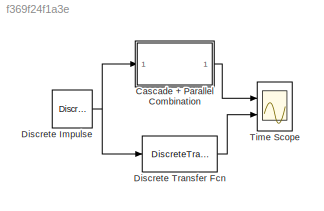
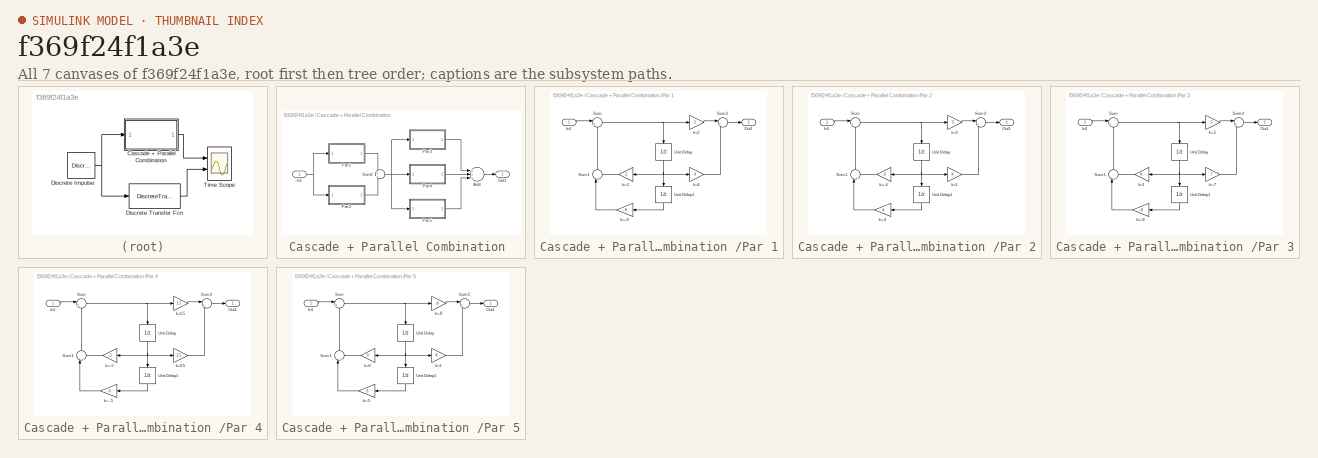
[diagram: thumbnail index - all 7 canvases of the model, root first then tree order]
MODEL slx_f369f24f1a3e
KIND model
CONFIG InitFcn =  b=[14 37.39 27.24 6.26 12.481 11.6605 ...\n -5.7215 -3.8865 .5425];\na=[1 .9 .5 .08 .14 .353 -.244 -.289 -.182 -.01 .072];
BLOCK [SubSystem] Cascade + Parallel Combination 
  Ports = [1, 1]
  RequestExecContextInheritance = off
BLOCK [Sum] Cascade + Parallel Combination /Add
  InputSameDT = off
  Inputs = +++
  OutDataTypeStr = Inherit: Inherit via internal rule
  Ports = [3, 1]
  SaturateOnIntegerOverflow = off
BLOCK [Inport] Cascade + Parallel Combination /In1
  IconDisplay = Port number
BLOCK [Outport] Cascade + Parallel Combination /Out1
  IconDisplay = Port number
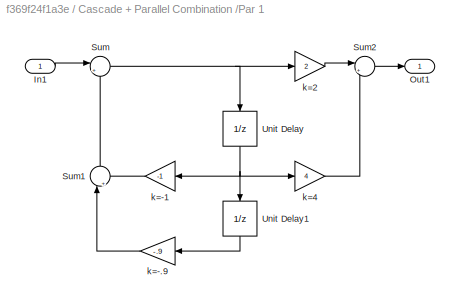
BLOCK [SubSystem] Cascade + Parallel Combination /Par 1
  Ports = [1, 1]
  RequestExecContextInheritance = off
BLOCK [Inport] Cascade + Parallel Combination /Par 1/In1
  IconDisplay = Port number
BLOCK [Outport] Cascade + Parallel Combination /Par 1/Out1
  IconDisplay = Port number
BLOCK [Sum] Cascade + Parallel Combination /Par 1/Sum
  IconShape = round
  InputSameDT = off
  Inputs = |++
  OutDataTypeStr = Inherit: Inherit via internal rule
  Ports = [2, 1]
  SaturateOnIntegerOverflow = off
BLOCK [Sum] Cascade + Parallel Combination /Par 1/Sum1
  IconShape = round
  InputSameDT = off
  Inputs = |++
  OutDataTypeStr = Inherit: Inherit via internal rule
  Ports = [2, 1]
  SaturateOnIntegerOverflow = off
BLOCK [Sum] Cascade + Parallel Combination /Par 1/Sum2
  IconShape = round
  InputSameDT = off
  Inputs = |++
  OutDataTypeStr = Inherit: Inherit via internal rule
  Ports = [2, 1]
  SaturateOnIntegerOverflow = off
BLOCK [UnitDelay] Cascade + Parallel Combination /Par 1/Unit Delay
  SampleTime = -1
BLOCK [UnitDelay] Cascade + Parallel Combination /Par 1/Unit Delay1
  SampleTime = -1
BLOCK [Gain] Cascade + Parallel Combination /Par 1/k=-.9
  Gain = -.9
  OutDataTypeStr = Inherit: Inherit via internal rule
  ParamDataTypeStr = Inherit: Inherit via internal rule
  SaturateOnIntegerOverflow = off
BLOCK [Gain] Cascade + Parallel Combination /Par 1/k=-1
  Gain = -1
  OutDataTypeStr = Inherit: Inherit via internal rule
  ParamDataTypeStr = Inherit: Inherit via internal rule
  SaturateOnIntegerOverflow = off
BLOCK [Gain] Cascade + Parallel Combination /Par 1/k=2
  Gain = 2
  OutDataTypeStr = Inherit: Inherit via internal rule
  ParamDataTypeStr = Inherit: Inherit via internal rule
  SaturateOnIntegerOverflow = off
BLOCK [Gain] Cascade + Parallel Combination /Par 1/k=4
  Gain = 4
  OutDataTypeStr = Inherit: Inherit via internal rule
  ParamDataTypeStr = Inherit: Inherit via internal rule
  SaturateOnIntegerOverflow = off
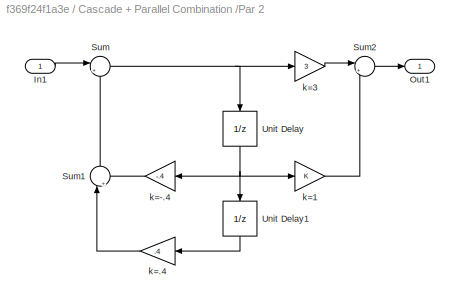
BLOCK [SubSystem] Cascade + Parallel Combination /Par 2
  Ports = [1, 1]
  RequestExecContextInheritance = off
BLOCK [Inport] Cascade + Parallel Combination /Par 2/In1
  IconDisplay = Port number
BLOCK [Outport] Cascade + Parallel Combination /Par 2/Out1
  IconDisplay = Port number
BLOCK [Sum] Cascade + Parallel Combination /Par 2/Sum
  IconShape = round
  InputSameDT = off
  Inputs = |++
  OutDataTypeStr = Inherit: Inherit via internal rule
  Ports = [2, 1]
  SaturateOnIntegerOverflow = off
BLOCK [Sum] Cascade + Parallel Combination /Par 2/Sum1
  IconShape = round
  InputSameDT = off
  Inputs = |++
  OutDataTypeStr = Inherit: Inherit via internal rule
  Ports = [2, 1]
  SaturateOnIntegerOverflow = off
BLOCK [Sum] Cascade + Parallel Combination /Par 2/Sum2
  IconShape = round
  InputSameDT = off
  Inputs = |++
  OutDataTypeStr = Inherit: Inherit via internal rule
  Ports = [2, 1]
  SaturateOnIntegerOverflow = off
BLOCK [UnitDelay] Cascade + Parallel Combination /Par 2/Unit Delay
  SampleTime = -1
BLOCK [UnitDelay] Cascade + Parallel Combination /Par 2/Unit Delay1
  SampleTime = -1
BLOCK [Gain] Cascade + Parallel Combination /Par 2/k=-.4
  Gain = -.4
  OutDataTypeStr = Inherit: Inherit via internal rule
  ParamDataTypeStr = Inherit: Inherit via internal rule
  SaturateOnIntegerOverflow = off
BLOCK [Gain] Cascade + Parallel Combination /Par 2/k=.4
  Gain = .4
  OutDataTypeStr = Inherit: Inherit via internal rule
  ParamDataTypeStr = Inherit: Inherit via internal rule
  SaturateOnIntegerOverflow = off
BLOCK [Gain] Cascade + Parallel Combination /Par 2/k=1
  OutDataTypeStr = Inherit: Inherit via internal rule
  ParamDataTypeStr = Inherit: Inherit via internal rule
  SaturateOnIntegerOverflow = off
BLOCK [Gain] Cascade + Parallel Combination /Par 2/k=3
  Gain = 3
  OutDataTypeStr = Inherit: Inherit via internal rule
  ParamDataTypeStr = Inherit: Inherit via internal rule
  SaturateOnIntegerOverflow = off
BLOCK [SubSystem] Cascade + Parallel Combination /Par 3
  Ports = [1, 1]
  RequestExecContextInheritance = off
BLOCK [Inport] Cascade + Parallel Combination /Par 3/In1
  IconDisplay = Port number
BLOCK [Outport] Cascade + Parallel Combination /Par 3/Out1
  IconDisplay = Port number
BLOCK [Sum] Cascade + Parallel Combination /Par 3/Sum
  IconShape = round
  InputSameDT = off
  Inputs = |++
  OutDataTypeStr = Inherit: Inherit via internal rule
  Ports = [2, 1]
  SaturateOnIntegerOverflow = off
BLOCK [Sum] Cascade + Parallel Combination /Par 3/Sum1
  IconShape = round
  InputSameDT = off
  Inputs = |++
  OutDataTypeStr = Inherit: Inherit via internal rule
  Ports = [2, 1]
  SaturateOnIntegerOverflow = off
BLOCK [Sum] Cascade + Parallel Combination /Par 3/Sum2
  IconShape = round
  InputSameDT = off
  Inputs = |++
  OutDataTypeStr = Inherit: Inherit via internal rule
  Ports = [2, 1]
  SaturateOnIntegerOverflow = off
BLOCK [UnitDelay] Cascade + Parallel Combination /Par 3/Unit Delay
  SampleTime = -1
BLOCK [UnitDelay] Cascade + Parallel Combination /Par 3/Unit Delay1
  SampleTime = -1
BLOCK [Gain] Cascade + Parallel Combination /Par 3/k=-.8
  Gain = -.8
  OutDataTypeStr = Inherit: Inherit via internal rule
  ParamDataTypeStr = Inherit: Inherit via internal rule
  SaturateOnIntegerOverflow = off
BLOCK [Gain] Cascade + Parallel Combination /Par 3/k=.5
  Gain = .5
  OutDataTypeStr = Inherit: Inherit via internal rule
  ParamDataTypeStr = Inherit: Inherit via internal rule
  SaturateOnIntegerOverflow = off
BLOCK [Gain] Cascade + Parallel Combination /Par 3/k=.7
  Gain = .7
  OutDataTypeStr = Inherit: Inherit via internal rule
  ParamDataTypeStr = Inherit: Inherit via internal rule
  SaturateOnIntegerOverflow = off
BLOCK [Gain] Cascade + Parallel Combination /Par 3/k=1
  OutDataTypeStr = Inherit: Inherit via internal rule
  ParamDataTypeStr = Inherit: Inherit via internal rule
  SaturateOnIntegerOverflow = off
BLOCK [SubSystem] Cascade + Parallel Combination /Par 4
  Ports = [1, 1]
  RequestExecContextInheritance = off
BLOCK [Inport] Cascade + Parallel Combination /Par 4/In1
  IconDisplay = Port number
BLOCK [Outport] Cascade + Parallel Combination /Par 4/Out1
  IconDisplay = Port number
BLOCK [Sum] Cascade + Parallel Combination /Par 4/Sum
  IconShape = round
  InputSameDT = off
  Inputs = |++
  OutDataTypeStr = Inherit: Inherit via internal rule
  Ports = [2, 1]
  SaturateOnIntegerOverflow = off
BLOCK [Sum] Cascade + Parallel Combination /Par 4/Sum1
  IconShape = round
  InputSameDT = off
  Inputs = |++
  OutDataTypeStr = Inherit: Inherit via internal rule
  Ports = [2, 1]
  SaturateOnIntegerOverflow = off
BLOCK [Sum] Cascade + Parallel Combination /Par 4/Sum2
  IconShape = round
  InputSameDT = off
  Inputs = |++
  OutDataTypeStr = Inherit: Inherit via internal rule
  Ports = [2, 1]
  SaturateOnIntegerOverflow = off
BLOCK [UnitDelay] Cascade + Parallel Combination /Par 4/Unit Delay
  SampleTime = -1
BLOCK [UnitDelay] Cascade + Parallel Combination /Par 4/Unit Delay1
  SampleTime = -1
BLOCK [Gain] Cascade + Parallel Combination /Par 4/k= -.5
  Gain = -.5
  OutDataTypeStr = Inherit: Inherit via internal rule
  ParamDataTypeStr = Inherit: Inherit via internal rule
  SaturateOnIntegerOverflow = off
BLOCK [Gain] Cascade + Parallel Combination /Par 4/k=-.5
  Gain = -.5
  OutDataTypeStr = Inherit: Inherit via internal rule
  ParamDataTypeStr = Inherit: Inherit via internal rule
  SaturateOnIntegerOverflow = off
BLOCK [Gain] Cascade + Parallel Combination /Par 4/k=1.5
  Gain = 1.5
  OutDataTypeStr = Inherit: Inherit via internal rule
  ParamDataTypeStr = Inherit: Inherit via internal rule
  SaturateOnIntegerOverflow = off
BLOCK [Gain] Cascade + Parallel Combination /Par 4/k=2.5
  Gain = 2.5
  OutDataTypeStr = Inherit: Inherit via internal rule
  ParamDataTypeStr = Inherit: Inherit via internal rule
  SaturateOnIntegerOverflow = off
BLOCK [SubSystem] Cascade + Parallel Combination /Par 5
  Ports = [1, 1]
  RequestExecContextInheritance = off
BLOCK [Inport] Cascade + Parallel Combination /Par 5/In1
  IconDisplay = Port number
BLOCK [Outport] Cascade + Parallel Combination /Par 5/Out1
  IconDisplay = Port number
BLOCK [Sum] Cascade + Parallel Combination /Par 5/Sum
  IconShape = round
  InputSameDT = off
  Inputs = |++
  OutDataTypeStr = Inherit: Inherit via internal rule
  Ports = [2, 1]
  SaturateOnIntegerOverflow = off
BLOCK [Sum] Cascade + Parallel Combination /Par 5/Sum1
  IconShape = round
  InputSameDT = off
  Inputs = |++
  OutDataTypeStr = Inherit: Inherit via internal rule
  Ports = [2, 1]
  SaturateOnIntegerOverflow = off
BLOCK [Sum] Cascade + Parallel Combination /Par 5/Sum2
  IconShape = round
  InputSameDT = off
  Inputs = |++
  OutDataTypeStr = Inherit: Inherit via internal rule
  Ports = [2, 1]
  SaturateOnIntegerOverflow = off
BLOCK [UnitDelay] Cascade + Parallel Combination /Par 5/Unit Delay
  SampleTime = -1
BLOCK [UnitDelay] Cascade + Parallel Combination /Par 5/Unit Delay1
  SampleTime = -1
BLOCK [Gain] Cascade + Parallel Combination /Par 5/k=.5
  Gain = .5
  OutDataTypeStr = Inherit: Inherit via internal rule
  ParamDataTypeStr = Inherit: Inherit via internal rule
  SaturateOnIntegerOverflow = off
BLOCK [Gain] Cascade + Parallel Combination /Par 5/k=.8
  Gain = .8
  OutDataTypeStr = Inherit: Inherit via internal rule
  ParamDataTypeStr = Inherit: Inherit via internal rule
  SaturateOnIntegerOverflow = off
BLOCK [Gain] Cascade + Parallel Combination /Par 5/k=0
  Gain = 0
  OutDataTypeStr = Inherit: Inherit via internal rule
  ParamDataTypeStr = Inherit: Inherit via internal rule
  SaturateOnIntegerOverflow = off
BLOCK [Gain] Cascade + Parallel Combination /Par 5/k=1
  OutDataTypeStr = Inherit: Inherit via internal rule
  ParamDataTypeStr = Inherit: Inherit via internal rule
  SaturateOnIntegerOverflow = off
BLOCK [Sum] Cascade + Parallel Combination /Sum2
  IconShape = round
  InputSameDT = off
  Inputs = +|+
  OutDataTypeStr = Inherit: Inherit via internal rule
  Ports = [2, 1]
  SaturateOnIntegerOverflow = off
BLOCK [Reference] Discrete Impulse  REF=dspsrcs4/Discrete 
Impulse
  Delay = 0
  FrameSample = 1
  LastOutDataTypeStr = double
  OutDataTypeStr = double
  Ports = [0, 1]
  SampleTime = 1
  SourceBlock = dspsrcs4/Discrete \nImpulse
  SourceType = Discrete Impulse
  additionalParams = off
  allowOverrides = on
  dataType = double
  fracBitsMode = Best precision
  isSigned = on
  numFracBits = 15
  udDataType = sfix(16)
  wordLen = 16
BLOCK [DiscreteTransferFcn] Discrete Transfer Fcn
  Denominator = a
  InputPortMap = u0
  Numerator = b
  Ports = [1, 1]
BLOCK [Scope] Time Scope
  DataFormat = Structure
  Floating = off
  NumInputPorts = 2
  Ports = [2]
  SampleTime = 0
  ShowLegends = off
  YMax = 30~30
  YMin = -30~-30
LINE Cascade + Parallel Combination /Add:1 -> Cascade + Parallel Combination /Out1:1
NET Cascade + Parallel Combination /In1:1 -> Cascade + Parallel Combination /Par 1:1, Cascade + Parallel Combination /Par 2:1
LINE Cascade + Parallel Combination /Par 1/In1:1 -> Cascade + Parallel Combination /Par 1/Sum:1
LINE Cascade + Parallel Combination /Par 1/Sum1:1 -> Cascade + Parallel Combination /Par 1/Sum:2
LINE Cascade + Parallel Combination /Par 1/Sum2:1 -> Cascade + Parallel Combination /Par 1/Out1:1
NET Cascade + Parallel Combination /Par 1/Sum:1 -> Cascade + Parallel Combination /Par 1/Unit Delay:1, Cascade + Parallel Combination /Par 1/k=2:1
LINE Cascade + Parallel Combination /Par 1/Unit Delay1:1 -> Cascade + Parallel Combination /Par 1/k=-.9:1
NET Cascade + Parallel Combination /Par 1/Unit Delay:1 -> Cascade + Parallel Combination /Par 1/Unit Delay1:1, Cascade + Parallel Combination /Par 1/k=-1:1, Cascade + Parallel Combination /Par 1/k=4:1
LINE Cascade + Parallel Combination /Par 1/k=-.9:1 -> Cascade + Parallel Combination /Par 1/Sum1:1
LINE Cascade + Parallel Combination /Par 1/k=-1:1 -> Cascade + Parallel Combination /Par 1/Sum1:2
LINE Cascade + Parallel Combination /Par 1/k=2:1 -> Cascade + Parallel Combination /Par 1/Sum2:1
LINE Cascade + Parallel Combination /Par 1/k=4:1 -> Cascade + Parallel Combination /Par 1/Sum2:2
LINE Cascade + Parallel Combination /Par 1:1 -> Cascade + Parallel Combination /Sum2:1
LINE Cascade + Parallel Combination /Par 2/In1:1 -> Cascade + Parallel Combination /Par 2/Sum:1
LINE Cascade + Parallel Combination /Par 2/Sum1:1 -> Cascade + Parallel Combination /Par 2/Sum:2
LINE Cascade + Parallel Combination /Par 2/Sum2:1 -> Cascade + Parallel Combination /Par 2/Out1:1
NET Cascade + Parallel Combination /Par 2/Sum:1 -> Cascade + Parallel Combination /Par 2/Unit Delay:1, Cascade + Parallel Combination /Par 2/k=3:1
LINE Cascade + Parallel Combination /Par 2/Unit Delay1:1 -> Cascade + Parallel Combination /Par 2/k=.4:1
NET Cascade + Parallel Combination /Par 2/Unit Delay:1 -> Cascade + Parallel Combination /Par 2/Unit Delay1:1, Cascade + Parallel Combination /Par 2/k=-.4:1, Cascade + Parallel Combination /Par 2/k=1:1
LINE Cascade + Parallel Combination /Par 2/k=-.4:1 -> Cascade + Parallel Combination /Par 2/Sum1:2
LINE Cascade + Parallel Combination /Par 2/k=.4:1 -> Cascade + Parallel Combination /Par 2/Sum1:1
LINE Cascade + Parallel Combination /Par 2/k=1:1 -> Cascade + Parallel Combination /Par 2/Sum2:2
LINE Cascade + Parallel Combination /Par 2/k=3:1 -> Cascade + Parallel Combination /Par 2/Sum2:1
LINE Cascade + Parallel Combination /Par 2:1 -> Cascade + Parallel Combination /Sum2:2
LINE Cascade + Parallel Combination /Par 3/In1:1 -> Cascade + Parallel Combination /Par 3/Sum:1
LINE Cascade + Parallel Combination /Par 3/Sum1:1 -> Cascade + Parallel Combination /Par 3/Sum:2
LINE Cascade + Parallel Combination /Par 3/Sum2:1 -> Cascade + Parallel Combination /Par 3/Out1:1
NET Cascade + Parallel Combination /Par 3/Sum:1 -> Cascade + Parallel Combination /Par 3/Unit Delay:1, Cascade + Parallel Combination /Par 3/k=.5:1
LINE Cascade + Parallel Combination /Par 3/Unit Delay1:1 -> Cascade + Parallel Combination /Par 3/k=-.8:1
NET Cascade + Parallel Combination /Par 3/Unit Delay:1 -> Cascade + Parallel Combination /Par 3/Unit Delay1:1, Cascade + Parallel Combination /Par 3/k=.7:1, Cascade + Parallel Combination /Par 3/k=1:1
LINE Cascade + Parallel Combination /Par 3/k=-.8:1 -> Cascade + Parallel Combination /Par 3/Sum1:1
LINE Cascade + Parallel Combination /Par 3/k=.5:1 -> Cascade + Parallel Combination /Par 3/Sum2:1
LINE Cascade + Parallel Combination /Par 3/k=.7:1 -> Cascade + Parallel Combination /Par 3/Sum2:2
LINE Cascade + Parallel Combination /Par 3/k=1:1 -> Cascade + Parallel Combination /Par 3/Sum1:2
LINE Cascade + Parallel Combination /Par 3:1 -> Cascade + Parallel Combination /Add:1
LINE Cascade + Parallel Combination /Par 4/In1:1 -> Cascade + Parallel Combination /Par 4/Sum:1
LINE Cascade + Parallel Combination /Par 4/Sum1:1 -> Cascade + Parallel Combination /Par 4/Sum:2
LINE Cascade + Parallel Combination /Par 4/Sum2:1 -> Cascade + Parallel Combination /Par 4/Out1:1
NET Cascade + Parallel Combination /Par 4/Sum:1 -> Cascade + Parallel Combination /Par 4/Unit Delay:1, Cascade + Parallel Combination /Par 4/k=1.5:1
LINE Cascade + Parallel Combination /Par 4/Unit Delay1:1 -> Cascade + Parallel Combination /Par 4/k= -.5:1
NET Cascade + Parallel Combination /Par 4/Unit Delay:1 -> Cascade + Parallel Combination /Par 4/Unit Delay1:1, Cascade + Parallel Combination /Par 4/k=-.5:1, Cascade + Parallel Combination /Par 4/k=2.5:1
LINE Cascade + Parallel Combination /Par 4/k= -.5:1 -> Cascade + Parallel Combination /Par 4/Sum1:1
LINE Cascade + Parallel Combination /Par 4/k=-.5:1 -> Cascade + Parallel Combination /Par 4/Sum1:2
LINE Cascade + Parallel Combination /Par 4/k=1.5:1 -> Cascade + Parallel Combination /Par 4/Sum2:1
LINE Cascade + Parallel Combination /Par 4/k=2.5:1 -> Cascade + Parallel Combination /Par 4/Sum2:2
LINE Cascade + Parallel Combination /Par 4:1 -> Cascade + Parallel Combination /Add:2
LINE Cascade + Parallel Combination /Par 5/In1:1 -> Cascade + Parallel Combination /Par 5/Sum:1
LINE Cascade + Parallel Combination /Par 5/Sum1:1 -> Cascade + Parallel Combination /Par 5/Sum:2
LINE Cascade + Parallel Combination /Par 5/Sum2:1 -> Cascade + Parallel Combination /Par 5/Out1:1
NET Cascade + Parallel Combination /Par 5/Sum:1 -> Cascade + Parallel Combination /Par 5/Unit Delay:1, Cascade + Parallel Combination /Par 5/k=.8:1
LINE Cascade + Parallel Combination /Par 5/Unit Delay1:1 -> Cascade + Parallel Combination /Par 5/k=.5:1
NET Cascade + Parallel Combination /Par 5/Unit Delay:1 -> Cascade + Parallel Combination /Par 5/Unit Delay1:1, Cascade + Parallel Combination /Par 5/k=0:1, Cascade + Parallel Combination /Par 5/k=1:1
LINE Cascade + Parallel Combination /Par 5/k=.5:1 -> Cascade + Parallel Combination /Par 5/Sum1:1
LINE Cascade + Parallel Combination /Par 5/k=.8:1 -> Cascade + Parallel Combination /Par 5/Sum2:1
LINE Cascade + Parallel Combination /Par 5/k=0:1 -> Cascade + Parallel Combination /Par 5/Sum1:2
LINE Cascade + Parallel Combination /Par 5/k=1:1 -> Cascade + Parallel Combination /Par 5/Sum2:2
LINE Cascade + Parallel Combination /Par 5:1 -> Cascade + Parallel Combination /Add:3
NET Cascade + Parallel Combination /Sum2:1 -> Cascade + Parallel Combination /Par 3:1, Cascade + Parallel Combination /Par 4:1, Cascade + Parallel Combination /Par 5:1
LINE Cascade + Parallel Combination :1 -> Time Scope:1
NET Discrete Impulse:1 -> Cascade + Parallel Combination :1, Discrete Transfer Fcn:1
LINE Discrete Transfer Fcn:1 -> Time Scope:2
note: NET lines group one-source signal fan-out (src -> all destinations, sorted); 1:1 wires keep LINE
